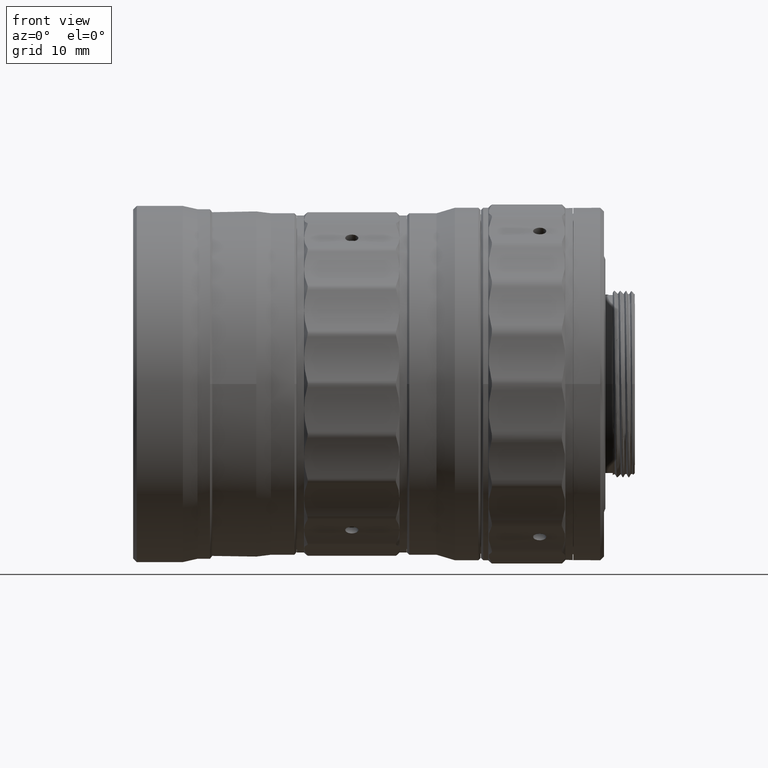
[diagram: clean part render]
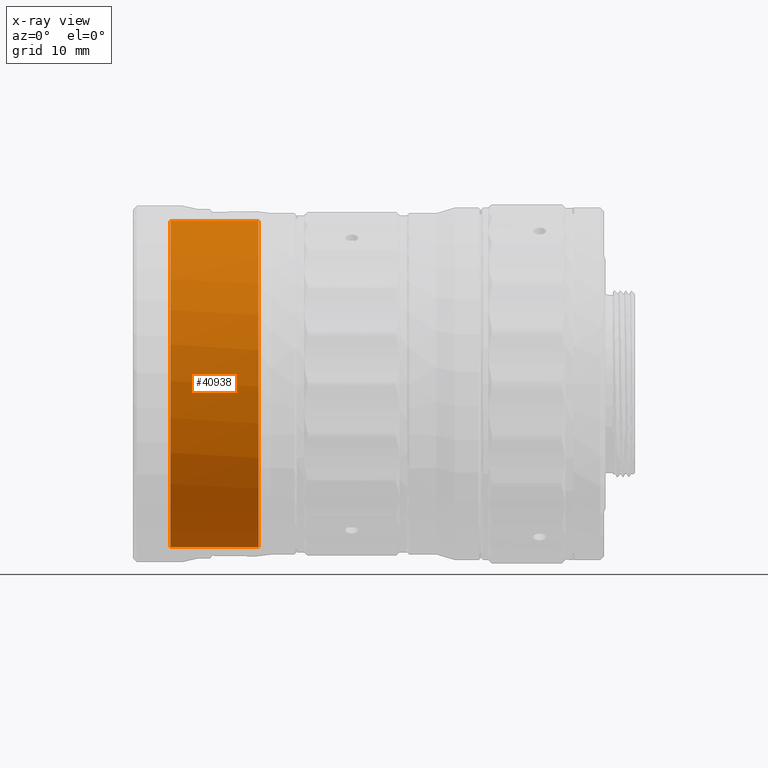
[diagram: x-ray — body ghosted, one internal face saturated and labeled with its STEP entity id]
A machine part, front view, then the same camera in x-ray: the body is ghosted and one INTERNAL B-rep face — a face not visible from any outside direction — is saturated and labeled: STEP entity #40938.
In plain terms, the highlighted face is a freeform B-spline surface patch.
Its self-contained STEP definition (entity closure, byte-faithful):
#353 = CARTESIAN_POINT ( 'NONE',  ( 1.100000000000000311, -22.19996394602227952, 1.454888057849603733 ) ) ;
#415 = VERTEX_POINT ( 'NONE', #41836 ) ;
#4727 = CARTESIAN_POINT ( 'NONE',  ( 1.100000000000000089, -22.05723243856869331, -2.904065291617599964 ) ) ;
#5091 = ORIENTED_EDGE ( 'NONE', *, *, #18101, .F. ) ;
#5411 = CARTESIAN_POINT ( 'NONE',  ( 13.10000000000000142, -7.151417089942217586, -21.06685387459840442 ) ) ;
#6012 = CARTESIAN_POINT ( 'NONE',  ( 1.100000000000000089, -16.72650628793863703, -14.66898382607680063 ) ) ;
#6255 = CARTESIAN_POINT ( 'NONE',  ( 13.10000000000000142, -21.48956325990006633, -5.757930925172800585 ) ) ;
#6333 = CARTESIAN_POINT ( 'NONE',  ( 1.100000000000000089, -1.328939128224941973E-09, -22.19999999632960197 ) ) ;
#6553 = CARTESIAN_POINT ( 'NONE',  ( 1.100000000000000089, -44.39999999089339155, 22.19999998178681722 ) ) ;
#6670 =( BOUNDED_SURFACE ( )  B_SPLINE_SURFACE ( 1, 3, ( 
 ( #65376, #6553, #25152, #58483 ),
 ( #32490, #51099, #32916, #17782 ) ),
 .UNSPECIFIED., .F., .F., .F. ) 
 B_SPLINE_SURFACE_WITH_KNOTS ( ( 2, 2 ),
 ( 4, 4 ),
 ( 0.0000000000000000000, 1.000000000000000000 ),
 ( 0.0000000000000000000, 1.000000000000000000 ),
 .UNSPECIFIED. ) 
 GEOMETRIC_REPRESENTATION_ITEM ( )  RATIONAL_B_SPLINE_SURFACE ( (
 ( 1.000000000000000000, 0.3333333334700690487, 0.3333333334700690487, 1.000000000000000000),
 ( 1.000000000000000000, 0.3333333334700690487, 0.3333333334700690487, 1.000000000000000000) ) ) 
 REPRESENTATION_ITEM ( '' )  SURFACE ( )  );
#7285 = CARTESIAN_POINT ( 'NONE',  ( 1.100000000000000089, -2.904065290633161656, 22.05723245735679683 ) ) ;
#7705 = CARTESIAN_POINT ( 'NONE',  ( 1.100000000000000089, -19.26694792550168600, 11.12398396985919824 ) ) ;
#11201 = CARTESIAN_POINT ( 'NONE',  ( 1.100000000000000311, -19.95339734774696794, -9.839727321353604950 ) ) ;
#12479 = CARTESIAN_POINT ( 'NONE',  ( 1.099999999999999867, -13.54333440481651785, -17.65030293445760279 ) ) ;
#13705 = EDGE_CURVE ( 'NONE', #45390, #415, #59020, .T. ) ;
#15943 = ORIENTED_EDGE ( 'NONE', *, *, #13705, .F. ) ;
#16226 = CARTESIAN_POINT ( 'NONE',  ( 13.10000000000000142, -6.071061484053799905E-09, 22.19999999632960197 ) ) ;
#16643 = CARTESIAN_POINT ( 'NONE',  ( 13.09999999999999964, -9.839699741463475036, 19.95333072275839825 ) ) ;
#16898 = B_SPLINE_CURVE_WITH_KNOTS ( 'NONE', 3,
 ( #30670, #44931, #57092, #32378, #83431, #71334, #44064, #12479, #38887, #6012, #70473, #38466, #11201, #37604, #63983, #4727, #83861, #353, #66539, #85565, #34513, #66969, #7705, #73039, #20241, #79945, #26321, #27595, #78689, #60905, #52705, #7285, #34086, #19393 ),
 .UNSPECIFIED., .F., .F.,
 ( 4, 2, 2, 2, 2, 2, 2, 2, 2, 2, 2, 2, 2, 2, 2, 2, 4 ),
 ( 0.0000000000000000000, 0.06249999999999997224, 0.1249999999999999445, 0.1874999999999999167, 0.2499999999999998890, 0.3124999999999998890, 0.3749999999999999445, 0.4375000000000000000, 0.5000000000000001110, 0.5625000000000002220, 0.6250000000000002220, 0.6875000000000002220, 0.7500000000000002220, 0.8125000000000002220, 0.8750000000000001110, 0.9375000000000001110, 1.000000000000000000 ),
 .UNSPECIFIED. ) ;
#17782 = CARTESIAN_POINT ( 'NONE',  ( 13.10000000000000142, -5.437431790222809185E-15, -22.19999999999999929 ) ) ;
#18101 = EDGE_CURVE ( 'NONE', #81234, #45390, #16898, .T. ) ;
#18644 = FACE_OUTER_BOUND ( 'NONE', #39886, .T. ) ;
#18784 = CARTESIAN_POINT ( 'NONE',  ( 13.10000000000000142, -5.757944956645365764, -21.48963401868800460 ) ) ;
#19136 = ORIENTED_EDGE ( 'NONE', *, *, #51545, .F. ) ;
#19205 = CARTESIAN_POINT ( 'NONE',  ( 13.10000000000000142, -19.95333072734164048, -9.839699702659199687 ) ) ;
#19393 = CARTESIAN_POINT ( 'NONE',  ( 1.100000000000000089, -6.071061484053799905E-09, 22.19999999632960197 ) ) ;
#19631 = CARTESIAN_POINT ( 'NONE',  ( 13.10000000000000142, -9.839727300264236476, -19.95339740303360188 ) ) ;
#20241 = CARTESIAN_POINT ( 'NONE',  ( 1.100000000000000089, -16.72655731665287604, 14.66903480982719365 ) ) ;
#21407 = CARTESIAN_POINT ( 'NONE',  ( 13.10000000000000142, -1.328939128224941973E-09, -22.19999999632960197 ) ) ;
#23140 = CARTESIAN_POINT ( 'NONE',  ( 13.09999999999999787, -5.757930922625621228, 21.48956326450559828 ) ) ;
#24739 = B_SPLINE_CURVE_WITH_KNOTS ( 'NONE', 3,
 ( #16226, #36148, #82405, #23140, #75941, #16643, #51668, #78504, #57764, #32201, #58612, #78075, #38279, #52527, #71574, #78923, #32627, #46031, #51240, #6255, #37855, #19205, #77214, #45594, #64665, #59027, #72423, #26138, #19631, #5411, #18784, #25289, #77649, #31780 ),
 .UNSPECIFIED., .F., .F.,
 ( 4, 2, 2, 2, 2, 2, 2, 2, 2, 2, 2, 2, 2, 2, 2, 2, 4 ),
 ( 0.0000000000000000000, 0.06249999999999993061, 0.1249999999999998612, 0.1874999999999997780, 0.2499999999999997224, 0.3124999999999997224, 0.3749999999999996669, 0.4374999999999997224, 0.4999999999999997780, 0.5624999999999997780, 0.6249999999999998890, 0.6874999999999998890, 0.7499999999999998890, 0.8125000000000000000, 0.8750000000000000000, 0.9375000000000001110, 1.000000000000000000 ),
 .UNSPECIFIED. ) ;
#25152 = CARTESIAN_POINT ( 'NONE',  ( 1.100000000000000089, -44.39999998178680585, -22.19999999999998863 ) ) ;
#25289 = CARTESIAN_POINT ( 'NONE',  ( 13.10000000000000142, -2.904065305610771031, -22.05723245735679328 ) ) ;
#26138 = CARTESIAN_POINT ( 'NONE',  ( 13.10000000000000142, -11.12394393090099243, -19.26688796369920098 ) ) ;
#26321 = CARTESIAN_POINT ( 'NONE',  ( 1.100000000000000089, -13.54337442498807142, 17.65036278494720534 ) ) ;
#27595 = CARTESIAN_POINT ( 'NONE',  ( 1.100000000000000089, -11.12394393090099420, 19.26688796369919743 ) ) ;
#30670 = CARTESIAN_POINT ( 'NONE',  ( 1.100000000000000089, -1.328939128224941973E-09, -22.19999999632960197 ) ) ;
#31780 = CARTESIAN_POINT ( 'NONE',  ( 13.10000000000000142, -1.328939128224941973E-09, -22.19999999632960197 ) ) ;
#32201 = CARTESIAN_POINT ( 'NONE',  ( 13.10000000000000142, -16.72650628793863703, 14.66898382607680063 ) ) ;
#32378 = CARTESIAN_POINT ( 'NONE',  ( 1.099999999999999645, -5.757930937603230603, -21.48956326450558763 ) ) ;
#32490 = CARTESIAN_POINT ( 'NONE',  ( 13.10000000000000142, -9.106592226080702753E-09, 22.19999999999999929 ) ) ;
#32627 = CARTESIAN_POINT ( 'NONE',  ( 13.10000000000000142, -22.20003607818775038, 1.454888117759999711 ) ) ;
#32916 = CARTESIAN_POINT ( 'NONE',  ( 13.09999999999999964, -44.39999998178680585, -22.19999999999998863 ) ) ;
#34086 = CARTESIAN_POINT ( 'NONE',  ( 1.099999999999999867, -1.453787129936528810, 22.19999998898880023 ) ) ;
#34513 = CARTESIAN_POINT ( 'NONE',  ( 1.100000000000000089, -21.06692045795287171, 7.151444687375995812 ) ) ;
#35011 = CARTESIAN_POINT ( 'NONE',  ( 1.100000000000000089, -6.071061484053799905E-09, 22.19999999632960197 ) ) ;
#36148 = CARTESIAN_POINT ( 'NONE',  ( 13.09999999999999964, -1.454522230991652787, 22.19999998898880733 ) ) ;
#37604 = CARTESIAN_POINT ( 'NONE',  ( 1.099999999999999867, -21.06685389745797821, -7.151417068681597655 ) ) ;
#37855 = CARTESIAN_POINT ( 'NONE',  ( 13.10000000000000142, -21.06692051786331277, -7.151444687376002030 ) ) ;
#38279 = CARTESIAN_POINT ( 'NONE',  ( 13.10000000000000142, -19.95339734774696794, 9.839727321353590739 ) ) ;
#38466 = CARTESIAN_POINT ( 'NONE',  ( 1.100000000000000311, -19.26688795515481800, -11.12394388980160542 ) ) ;
#38887 = CARTESIAN_POINT ( 'NONE',  ( 1.100000000000000089, -14.66903476055713718, -16.72655726772800122 ) ) ;
#39886 = EDGE_LOOP ( 'NONE', ( #19136, #15943, #5091, #59826 ) ) ;
#40045 = CARTESIAN_POINT ( 'NONE',  ( 13.10000000000000142, -1.328939128224941973E-09, -22.19999999632960197 ) ) ;
#40938 = ADVANCED_FACE ( 'NONE', ( #18644 ), #6670, .F. ) ;
#41836 = CARTESIAN_POINT ( 'NONE',  ( 13.10000000000000142, -6.071061484053799905E-09, 22.19999999632960197 ) ) ;
#44064 = CARTESIAN_POINT ( 'NONE',  ( 1.099999999999999867, -11.12398395107253890, -19.26694781418879643 ) ) ;
#44931 = CARTESIAN_POINT ( 'NONE',  ( 1.100000000000000089, -1.454522230991652565, -22.19999998898880378 ) ) ;
#45390 = VERTEX_POINT ( 'NONE', #76963 ) ;
#45594 = CARTESIAN_POINT ( 'NONE',  ( 13.10000000000000142, -17.65030290120586187, -13.54333438990400218 ) ) ;
#46031 = CARTESIAN_POINT ( 'NONE',  ( 13.09999999999999964, -22.19996394602227596, -1.454888117759998378 ) ) ;
#51099 = CARTESIAN_POINT ( 'NONE',  ( 13.09999999999999964, -44.39999999089339155, 22.19999998178681722 ) ) ;
#51240 = CARTESIAN_POINT ( 'NONE',  ( 13.10000000000000142, -22.05730319279412655, -2.904079370561603479 ) ) ;
#51545 = EDGE_CURVE ( 'NONE', #415, #81507, #24739, .T. ) ;
#51668 = CARTESIAN_POINT ( 'NONE',  ( 13.09999999999999964, -11.12398395107253712, 19.26694781418879998 ) ) ;
#52527 = CARTESIAN_POINT ( 'NONE',  ( 13.09999999999999964, -21.06685389745797821, 7.151417068681601208 ) ) ;
#52705 = CARTESIAN_POINT ( 'NONE',  ( 1.100000000000000089, -5.757945061488621619, 21.48963401868800460 ) ) ;
#56183 = CARTESIAN_POINT ( 'NONE',  ( 13.10000000000000142, -6.071061484053799905E-09, 22.19999999632960197 ) ) ;
#56325 = B_SPLINE_CURVE_WITH_KNOTS ( 'NONE', 1,
 ( #40045, #6333 ),
 .UNSPECIFIED., .F., .F.,
 ( 2, 2 ),
 ( -1.000000000000000000, 0.0000000000000000000 ),
 .UNSPECIFIED. ) ;
#57092 = CARTESIAN_POINT ( 'NONE',  ( 1.100000000000000089, -2.904079324652898642, -22.05730321153919604 ) ) ;
#57764 = CARTESIAN_POINT ( 'NONE',  ( 13.10000000000000497, -14.66903476055714250, 16.72655726772800122 ) ) ;
#58483 = CARTESIAN_POINT ( 'NONE',  ( 1.100000000000000089, -5.437431790222809185E-15, -22.19999999999999929 ) ) ;
#58612 = CARTESIAN_POINT ( 'NONE',  ( 13.10000000000000142, -17.65036287155274408, 13.54337446996160033 ) ) ;
#59020 = B_SPLINE_CURVE_WITH_KNOTS ( 'NONE', 1,
 ( #35011, #56183 ),
 .UNSPECIFIED., .F., .F.,
 ( 2, 2 ),
 ( -1.000000000000000000, 0.0000000000000000000 ),
 .UNSPECIFIED. ) ;
#59027 = CARTESIAN_POINT ( 'NONE',  ( 13.10000000000000142, -14.66898383668616646, -16.72650628397759931 ) ) ;
#59826 = ORIENTED_EDGE ( 'NONE', *, *, #85161, .F. ) ;
#60905 = CARTESIAN_POINT ( 'NONE',  ( 1.100000000000000089, -7.151417089942220251, 21.06685387459839376 ) ) ;
#61331 = CARTESIAN_POINT ( 'NONE',  ( 1.100000000000000089, -1.328939128224941973E-09, -22.19999999632960197 ) ) ;
#63983 = CARTESIAN_POINT ( 'NONE',  ( 1.100000000000000089, -21.48963401412549956, -5.757945004116804100 ) ) ;
#64665 = CARTESIAN_POINT ( 'NONE',  ( 13.09999999999999964, -16.72655721180960597, -14.66903480982720254 ) ) ;
#65376 = CARTESIAN_POINT ( 'NONE',  ( 1.100000000000000089, -9.106592226080702753E-09, 22.19999999999999929 ) ) ;
#66539 = CARTESIAN_POINT ( 'NONE',  ( 1.100000000000000089, -22.05730319279412655, 2.904079370561599482 ) ) ;
#66969 = CARTESIAN_POINT ( 'NONE',  ( 1.100000000000000089, -19.95333078725207088, 9.839699702659201463 ) ) ;
#70473 = CARTESIAN_POINT ( 'NONE',  ( 1.100000000000000311, -17.65036287155274763, -13.54337446996160388 ) ) ;
#71334 = CARTESIAN_POINT ( 'NONE',  ( 1.100000000000000089, -9.839699741463475036, -19.95333072275839825 ) ) ;
#71574 = CARTESIAN_POINT ( 'NONE',  ( 13.10000000000000142, -21.48963401412549956, 5.757945004116798771 ) ) ;
#72423 = CARTESIAN_POINT ( 'NONE',  ( 13.10000000000000142, -13.54337442498807498, -17.65036278494720179 ) ) ;
#73039 = CARTESIAN_POINT ( 'NONE',  ( 1.100000000000000089, -17.65030290120586187, 13.54333438990400218 ) ) ;
#75941 = CARTESIAN_POINT ( 'NONE',  ( 13.09999999999999964, -7.151444648742980803, 21.06692055487360093 ) ) ;
#76963 = CARTESIAN_POINT ( 'NONE',  ( 1.100000000000000089, -6.071061484053799905E-09, 22.19999999632960197 ) ) ;
#77214 = CARTESIAN_POINT ( 'NONE',  ( 13.10000000000000142, -19.26694792550168600, -11.12398396985920179 ) ) ;
#77649 = CARTESIAN_POINT ( 'NONE',  ( 13.09999999999999787, -1.453787129936528810, -22.19999998898879667 ) ) ;
#78075 = CARTESIAN_POINT ( 'NONE',  ( 13.10000000000000142, -19.26688795515481800, 11.12394388980160720 ) ) ;
#78504 = CARTESIAN_POINT ( 'NONE',  ( 13.10000000000000142, -13.54333440481652495, 17.65030293445760279 ) ) ;
#78689 = CARTESIAN_POINT ( 'NONE',  ( 1.099999999999999645, -9.839727300264232923, 19.95339740303359477 ) ) ;
#78923 = CARTESIAN_POINT ( 'NONE',  ( 13.09999999999999787, -22.05723243856868621, 2.904065291617599964 ) ) ;
#79945 = CARTESIAN_POINT ( 'NONE',  ( 1.100000000000000089, -14.66898382170855974, 16.72650628397760286 ) ) ;
#81234 = VERTEX_POINT ( 'NONE', #61331 ) ;
#81507 = VERTEX_POINT ( 'NONE', #21407 ) ;
#82405 = CARTESIAN_POINT ( 'NONE',  ( 13.10000000000000142, -2.904079429496157605, 22.05730321153919249 ) ) ;
#83431 = CARTESIAN_POINT ( 'NONE',  ( 1.099999999999999867, -7.151444648742981691, -21.06692055487359738 ) ) ;
#83861 = CARTESIAN_POINT ( 'NONE',  ( 1.099999999999999867, -22.20003607818774327, -1.454888057849599292 ) ) ;
#85161 = EDGE_CURVE ( 'NONE', #81507, #81234, #56325, .T. ) ;
#85565 = CARTESIAN_POINT ( 'NONE',  ( 1.100000000000000311, -21.48956325990006988, 5.757930925172797032 ) ) ;